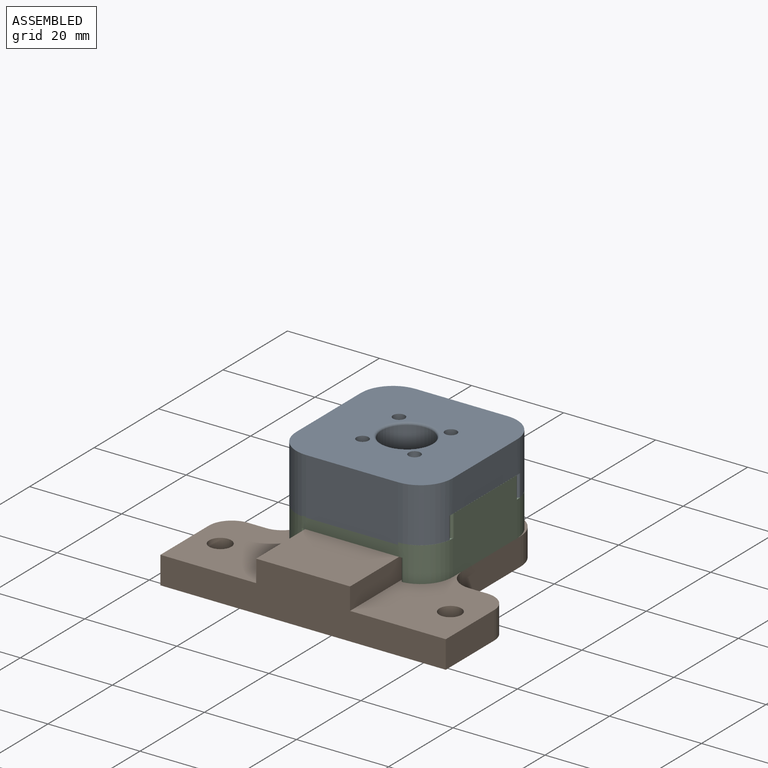
[diagram: assembled view]
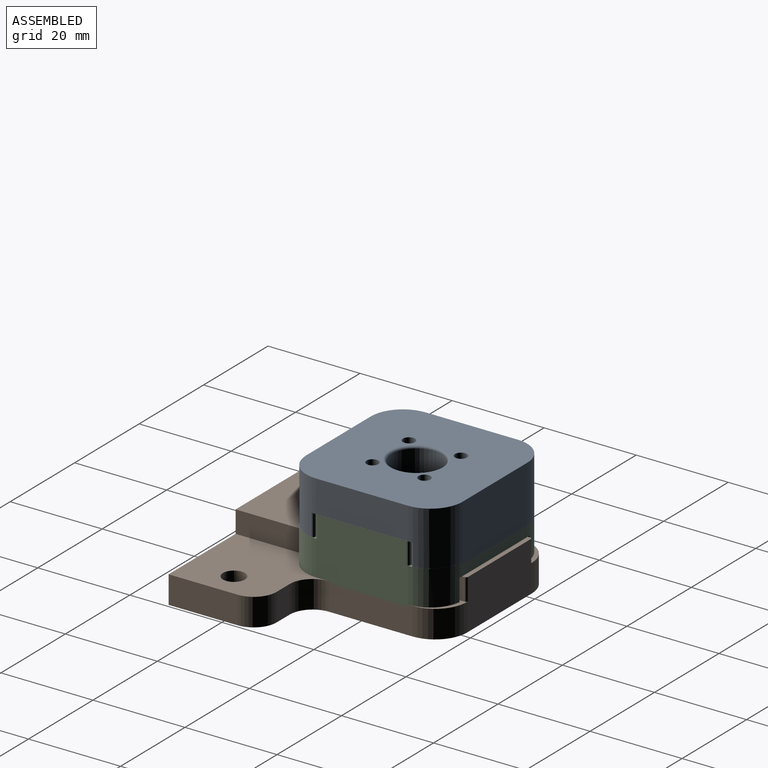
[diagram: assembled view, second angle]
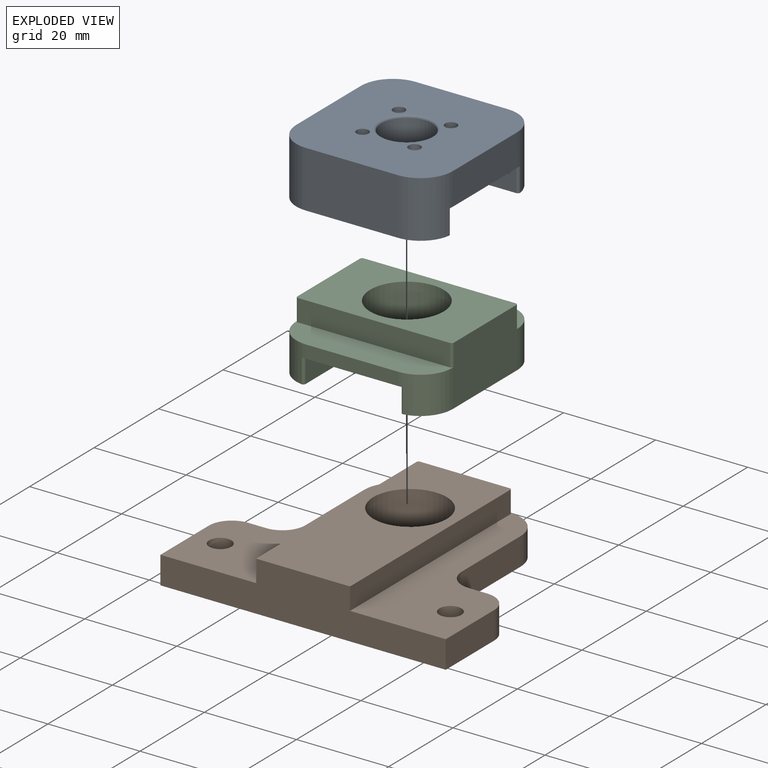
[diagram: exploded view]
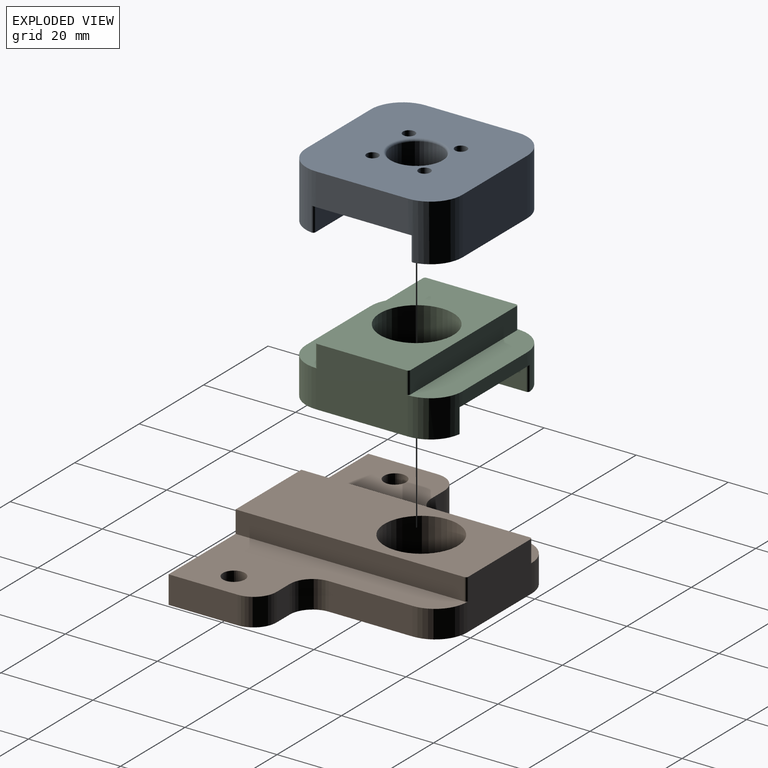
[diagram: exploded view, second angle]
ASSEMBLY  parts=3 mates=2
PART A: 24 faces, bbox 34x34x12.3 mm
  f0: plane 33.85x6.5mm, normal (0,0,1), area 199.8mm2, adj f4,f14,f17,f18,f19,f20
  f1: plane 20x7mm, normal (0,-1,0), area 140mm2, adj f6,f12,f16,f17
  f2: plane 20x7mm, normal (0,1,0), area 140mm2, adj f6,f12,f15,f18
  f3: plane 20x12.3mm, normal (-1,0,0), area 246mm2, adj f5,f6,f15,f16
  f4: plane 20x12.3mm, normal (1,0,0), area 246mm2, adj f0,f6,f17,f18
  f5: plane 33.85x6.5mm, normal (0,0,1), area 199.8mm2, adj f3,f13,f15,f16,f21,f22
  f6: plane 34x34mm, normal (0,0,-1), area 979.6mm2, adj f1,f2,f3,f4,f8,f9,f10,f11
  f7: cylinder r=5.5mm len=11mm, axis (0,0,1), area 224.6mm2, adj f12,f23
  f8: cylinder r=1.3mm len=7mm, axis (0,0,-1), area 57.2mm2, adj f6,f12
  f9: cylinder r=1.3mm len=7mm, axis (0,0,-1), area 57.2mm2, adj f6,f12
  f10: cylinder r=1.3mm len=7mm, axis (0,0,-1), area 57.2mm2, adj f6,f12
  f11: cylinder r=1.3mm len=7mm, axis (0,0,-1), area 57.2mm2, adj f6,f12
  f12: plane 34x22.15mm, normal (0,0,1), area 598mm2, adj f1,f2,f7,f8,f9,f10,f11,f13
  f13: plane 32.85x5.3mm, normal (1,0,0), area 174.1mm2, adj f5,f12,f21,f22
  f14: plane 32.85x5.3mm, normal (-1,0,0), area 174.1mm2, adj f0,f12,f19,f20
  f15: cylinder r=7mm len=12.3mm, axis (0,0,1), area 129.5mm2, adj f2,f3,f5,f6,f12,f21
  f16: cylinder r=7mm len=12.3mm, axis (0,0,-1), area 129.5mm2, adj f1,f3,f5,f6,f12,f22
  f17: cylinder r=7mm len=12.3mm, axis (0,0,1), area 129.5mm2, adj f0,f1,f4,f6,f12,f19
  f18: cylinder r=7mm len=12.3mm, axis (0,0,-1), area 129.5mm2, adj f0,f2,f4,f6,f12,f20
  f19: cylinder r=0.5mm len=5.3mm, axis (0,0,1), area 4.6mm2, adj f0,f12,f14,f17
  f20: cylinder r=0.5mm len=5.3mm, axis (0,0,-1), area 4.6mm2, adj f0,f12,f14,f18
  f21: cylinder r=0.5mm len=5.3mm, axis (0,0,1), area 4.6mm2, adj f5,f12,f13,f15
  f22: cylinder r=0.5mm len=5.3mm, axis (0,0,-1), area 4.6mm2, adj f5,f12,f13,f16
  f23: torus R=6mm, axis (0,0,1), area 28mm2, adj f6,f7
PART B: 25 faces, bbox 62x50.2x10.8 mm
  f0: plane 62x50.2mm, normal (0,0,-1), area 2008.5mm2, adj f2,f3,f4,f5,f6,f7,f8,f9
  f1: plane 50.2x21.3mm, normal (0,0,1), area 592.8mm2, adj f4,f5,f6,f7,f8,f12,f16,f17
  f2: plane 6x4mm, normal (0,1,0), area 24mm2, adj f0,f10,f19,f22
  f3: plane 15x6mm, normal (-1,0,0), area 90mm2, adj f0,f4,f10,f19
  f4: plane 62x10.8mm, normal (0,-1,0), area 469.9mm2, adj f0,f1,f3,f5,f10,f11,f12,f13
  f5: plane 15x6mm, normal (1,0,0), area 90mm2, adj f0,f1,f4,f20
  f6: plane 6x4mm, normal (0,1,0), area 24mm2, adj f0,f1,f20,f21
  f7: plane 18.2x6mm, normal (1,0,0), area 109.2mm2, adj f0,f1,f17,f21
  f8: plane 20x10.8mm, normal (0,1,0), area 213.1mm2, adj f0,f1,f10,f13,f17,f18,f23,f24
  f9: plane 18.2x6mm, normal (-1,0,0), area 109.2mm2, adj f0,f10,f18,f22
  f10: plane 50.2x21.3mm, normal (0,0,1), area 592.8mm2, adj f2,f3,f4,f8,f9,f11,f15,f18
  f11: plane 49.7x4.8mm, normal (-1,0,0), area 238.6mm2, adj f4,f10,f13,f23
  f12: plane 49.7x4.8mm, normal (1,0,0), area 238.6mm2, adj f1,f4,f13,f24
  f13: plane 50.2x20.4mm, normal (0,0,1), area 822.9mm2, adj f4,f8,f11,f12,f14,f23,f24
  f14: cylinder r=8mm len=16mm, axis (0,0,1), area 542.9mm2, adj f0,f13
  f15: cylinder r=2.4mm len=6mm, axis (0,0,1), area 90.5mm2, adj f0,f10
  f16: cylinder r=2.4mm len=6mm, axis (0,0,1), area 90.5mm2, adj f0,f1
  f17: cylinder r=7mm len=7mm, axis (0,0,1), area 66mm2, adj f0,f1,f7,f8
  f18: cylinder r=7mm len=7mm, axis (0,0,-1), area 66mm2, adj f0,f8,f9,f10
  f19: cylinder r=5mm len=6mm, axis (0,0,-1), area 47.1mm2, adj f0,f2,f3,f10
  f20: cylinder r=5mm len=6mm, axis (0,0,1), area 47.1mm2, adj f0,f1,f5,f6
  f21: cylinder r=5mm len=6mm, axis (0,0,-1), area 47.1mm2, adj f0,f1,f6,f7
  f22: cylinder r=5mm len=6mm, axis (0,0,1), area 47.1mm2, adj f0,f2,f9,f10
  f23: cylinder r=0.5mm len=4.8mm, axis (0,0,1), area 3.8mm2, adj f8,f10,f11,f13
  f24: cylinder r=0.5mm len=4.8mm, axis (0,0,1), area 3.8mm2, adj f1,f8,f12,f13
PART C: 27 faces, bbox 34x34x12.9 mm
  f0: plane 20x2.8mm, normal (0,1,0), area 56mm2, adj f9,f10,f15,f18
  f1: plane 20x2.8mm, normal (0,-1,0), area 56mm2, adj f9,f12,f16,f17
  f2: plane 20x12.9mm, normal (1,0,0), area 255.1mm2, adj f3,f5,f10,f12,f17,f18,f22,f24
  f3: plane 34x20.4mm, normal (0,0,1), area 492.3mm2, adj f2,f4,f11,f13,f14,f21,f22,f23
  f4: plane 20x12.9mm, normal (-1,0,0), area 255.1mm2, adj f3,f6,f10,f12,f15,f16,f21,f23
  f5: plane 33.85x6.5mm, normal (0,0,-1), area 199.8mm2, adj f2,f8,f17,f18,f19,f20
  f6: plane 33.85x6.5mm, normal (0,0,-1), area 199.8mm2, adj f4,f7,f15,f16,f25,f26
  f7: plane 32.85x5.3mm, normal (1,0,0), area 174.1mm2, adj f6,f9,f25,f26
  f8: plane 32.85x5.3mm, normal (-1,0,0), area 174.1mm2, adj f5,f9,f19,f20
  f9: plane 34x22.15mm, normal (0,0,-1), area 513.2mm2, adj f0,f1,f7,f8,f14,f15,f16,f17
  f10: plane 34x7.3mm, normal (0,0,1), area 210.3mm2, adj f0,f2,f4,f11,f15,f18,f23,f24
  f11: plane 33x4.8mm, normal (0,1,0), area 158.4mm2, adj f3,f10,f23,f24
  f12: plane 34x7.3mm, normal (0,0,1), area 210.3mm2, adj f1,f2,f4,f13,f16,f17,f21,f22
  f13: plane 33x4.8mm, normal (0,-1,0), area 158.4mm2, adj f3,f12,f21,f22
  f14: cylinder r=8mm len=16mm, axis (0,0,1), area 382mm2, adj f3,f9
  f15: cylinder r=7mm len=8.1mm, axis (0,0,1), area 83.3mm2, adj f0,f4,f6,f9,f10,f25
  f16: cylinder r=7mm len=8.1mm, axis (0,0,-1), area 83.3mm2, adj f1,f4,f6,f9,f12,f26
  f17: cylinder r=7mm len=8.1mm, axis (0,0,1), area 83.3mm2, adj f1,f2,f5,f9,f12,f19
  f18: cylinder r=7mm len=8.1mm, axis (0,0,-1), area 83.3mm2, adj f0,f2,f5,f9,f10,f20
  f19: cylinder r=0.5mm len=5.3mm, axis (0,0,1), area 4.6mm2, adj f5,f8,f9,f17
  f20: cylinder r=0.5mm len=5.3mm, axis (0,0,-1), area 4.6mm2, adj f5,f8,f9,f18
  f21: cylinder r=0.5mm len=4.8mm, axis (0,0,1), area 3.8mm2, adj f3,f4,f12,f13
  f22: cylinder r=0.5mm len=4.8mm, axis (0,0,1), area 3.8mm2, adj f2,f3,f12,f13
  f23: cylinder r=0.5mm len=4.8mm, axis (0,0,1), area 3.8mm2, adj f3,f4,f10,f11
  f24: cylinder r=0.5mm len=4.8mm, axis (0,0,1), area 3.8mm2, adj f2,f3,f10,f11
  f25: cylinder r=0.5mm len=5.3mm, axis (0,0,1), area 4.6mm2, adj f6,f7,f9,f15
  f26: cylinder r=0.5mm len=5.3mm, axis (0,0,-1), area 4.6mm2, adj f6,f7,f9,f16
PLACE A rot(axis=(0.71,-0.71,0),180deg) t=(-13.21,-26.89,1.14)mm
PLACE B t=(-13.19,-59.09,-24.26)mm fixed
PLACE C t=(-13.19,-26.89,-18.76)mm
MATE parallel A.f7 <-> C.f14  axis (0,0,1) through (-13.21,-26.89,-5.86)mm
MATE parallel B.f14 <-> C.f14  axis (0,0,1) through (-13.19,-25.89,-13.46)mm
